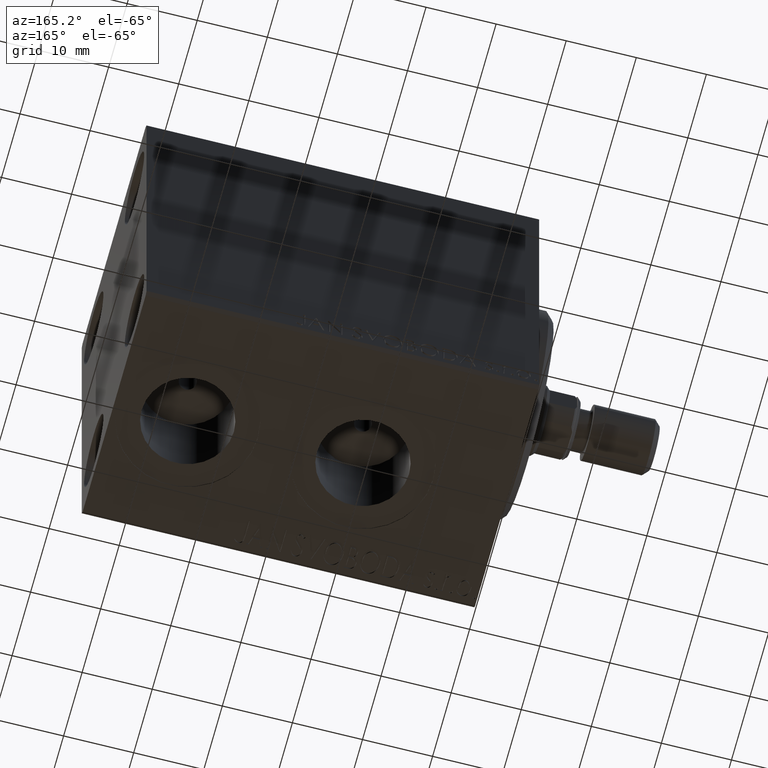
[diagram: clean part render]
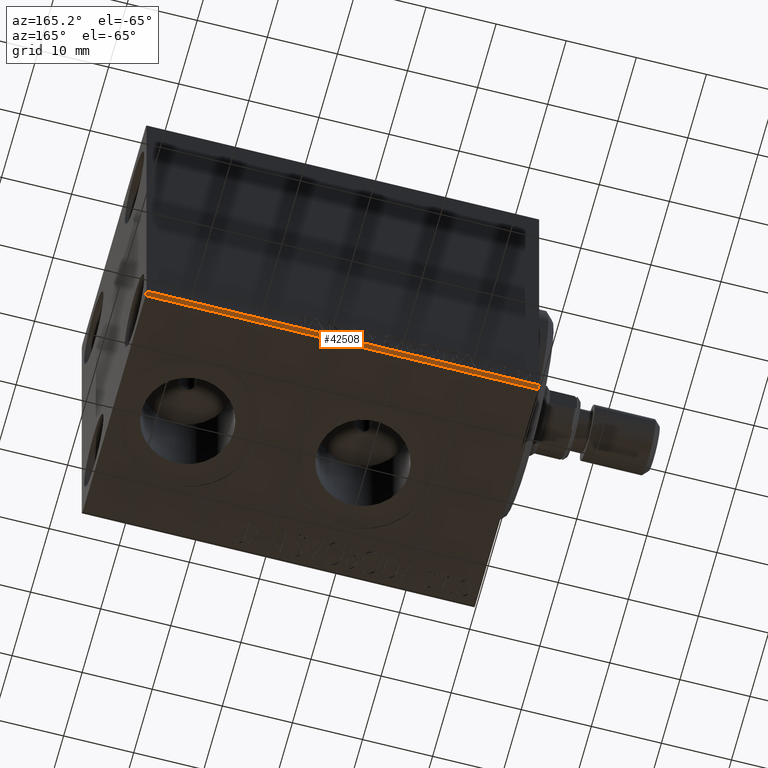
[diagram: same view with one face highlighted and labeled with its STEP entity id]
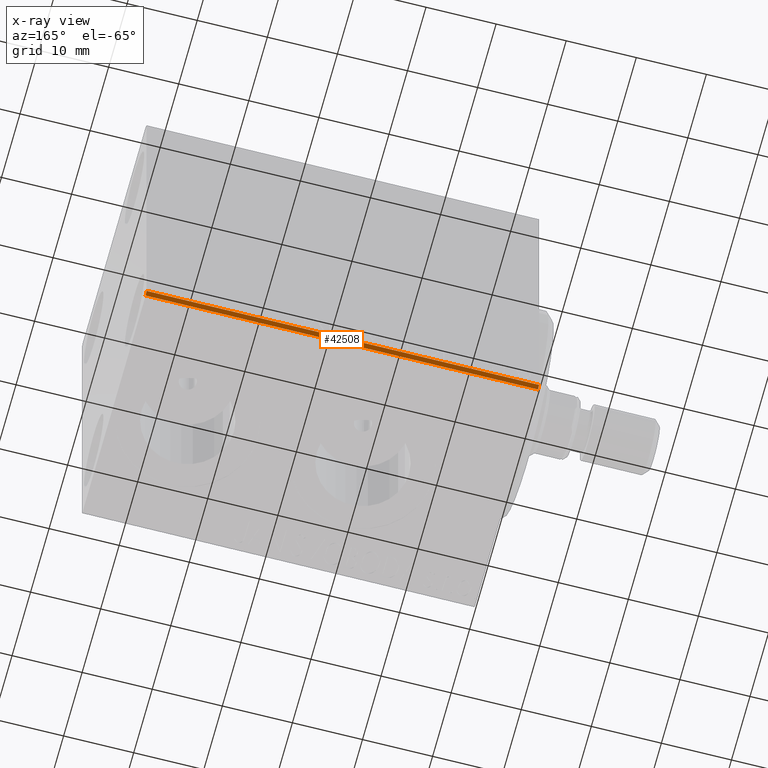
[diagram: x-ray of the same camera — body ghosted, the highlighted face saturated]
A machine part, auxiliary view. The second image highlights one B-rep face of the part: STEP entity #42508.
The next image is the same camera in x-ray: the body ghosted, the highlighted face saturated — about 0% of this face is hidden behind the body in this view.
In plain terms, the highlighted planar face has unit normal (0, -0.7071, 0.7071).
Its self-contained STEP definition (entity closure, byte-faithful):
#87 = ORIENTED_EDGE ( 'NONE', *, *, #9305, .F. ) ;
#105 = LINE ( 'NONE', #17449, #27207 ) ;
#410 = FACE_OUTER_BOUND ( 'NONE', #33848, .T. ) ;
#2394 = CARTESIAN_POINT ( 'NONE',  ( 0.000000000000000000, 17.00000000000000711, -27.50000000000000355 ) ) ;
#4014 = CARTESIAN_POINT ( 'NONE',  ( 56.00000000000000000, 17.50000000000000711, -27.00000000000000355 ) ) ;
#6197 = LINE ( 'NONE', #19919, #39744 ) ;
#6508 = AXIS2_PLACEMENT_3D ( 'NONE', #4014, #31478, #41375 ) ;
#7938 = CARTESIAN_POINT ( 'NONE',  ( 56.00000000000000000, 17.00000000000000711, -27.50000000000000355 ) ) ;
#8550 = VECTOR ( 'NONE', #38520, 1000.000000000000114 ) ;
#9305 = EDGE_CURVE ( 'NONE', #35210, #26429, #6197, .T. ) ;
#10873 = DIRECTION ( 'NONE',  ( 1.000000000000000000, 0.000000000000000000, 0.000000000000000000 ) ) ;
#11353 = DIRECTION ( 'NONE',  ( -0.000000000000000000, 0.7071067811865474617, 0.7071067811865474617 ) ) ;
#13519 = CARTESIAN_POINT ( 'NONE',  ( 0.000000000000000000, 17.50000000000000711, -27.00000000000000355 ) ) ;
#14702 = ORIENTED_EDGE ( 'NONE', *, *, #33432, .F. ) ;
#17449 = CARTESIAN_POINT ( 'NONE',  ( 56.00000000000000000, 22.25000000000000711, -22.25000000000000711 ) ) ;
#18887 = ORIENTED_EDGE ( 'NONE', *, *, #29864, .F. ) ;
#19764 = ORIENTED_EDGE ( 'NONE', *, *, #32662, .F. ) ;
#19919 = CARTESIAN_POINT ( 'NONE',  ( 56.00000000000000000, 17.50000000000000711, -27.00000000000000355 ) ) ;
#20048 = VERTEX_POINT ( 'NONE', #2394 ) ;
#21972 = VERTEX_POINT ( 'NONE', #35074 ) ;
#26429 = VERTEX_POINT ( 'NONE', #13519 ) ;
#27207 = VECTOR ( 'NONE', #11353, 1000.000000000000114 ) ;
#29066 = LINE ( 'NONE', #41885, #8550 ) ;
#29864 = EDGE_CURVE ( 'NONE', #26429, #20048, #29066, .T. ) ;
#31478 = DIRECTION ( 'NONE',  ( 0.000000000000000000, -0.7071067811865475727, 0.7071067811865475727 ) ) ;
#32662 = EDGE_CURVE ( 'NONE', #21972, #35210, #105, .T. ) ;
#33092 = CARTESIAN_POINT ( 'NONE',  ( 56.00000000000000000, 17.50000000000000711, -27.00000000000000355 ) ) ;
#33432 = EDGE_CURVE ( 'NONE', #20048, #21972, #41689, .T. ) ;
#33848 = EDGE_LOOP ( 'NONE', ( #19764, #14702, #18887, #87 ) ) ;
#35074 = CARTESIAN_POINT ( 'NONE',  ( 56.00000000000000000, 17.00000000000000711, -27.50000000000000355 ) ) ;
#35210 = VERTEX_POINT ( 'NONE', #33092 ) ;
#36138 = DIRECTION ( 'NONE',  ( -1.000000000000000000, 0.000000000000000000, 0.000000000000000000 ) ) ;
#37565 = PLANE ( 'NONE',  #6508 ) ;
#38520 = DIRECTION ( 'NONE',  ( 0.000000000000000000, -0.7071067811865474617, -0.7071067811865474617 ) ) ;
#39448 = VECTOR ( 'NONE', #10873, 1000.000000000000000 ) ;
#39744 = VECTOR ( 'NONE', #36138, 1000.000000000000000 ) ;
#41375 = DIRECTION ( 'NONE',  ( -1.000000000000000000, 0.000000000000000000, 0.000000000000000000 ) ) ;
#41689 = LINE ( 'NONE', #7938, #39448 ) ;
#41885 = CARTESIAN_POINT ( 'NONE',  ( 0.000000000000000000, 17.50000000000000711, -27.00000000000000355 ) ) ;
#42508 = ADVANCED_FACE ( 'NONE', ( #410 ), #37565, .F. ) ;